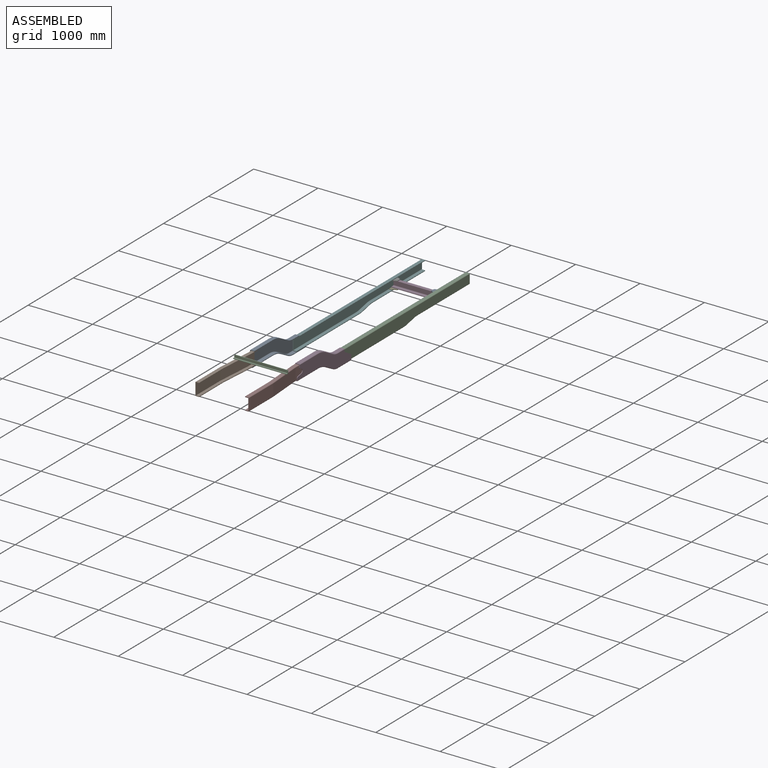
[diagram: assembled view]
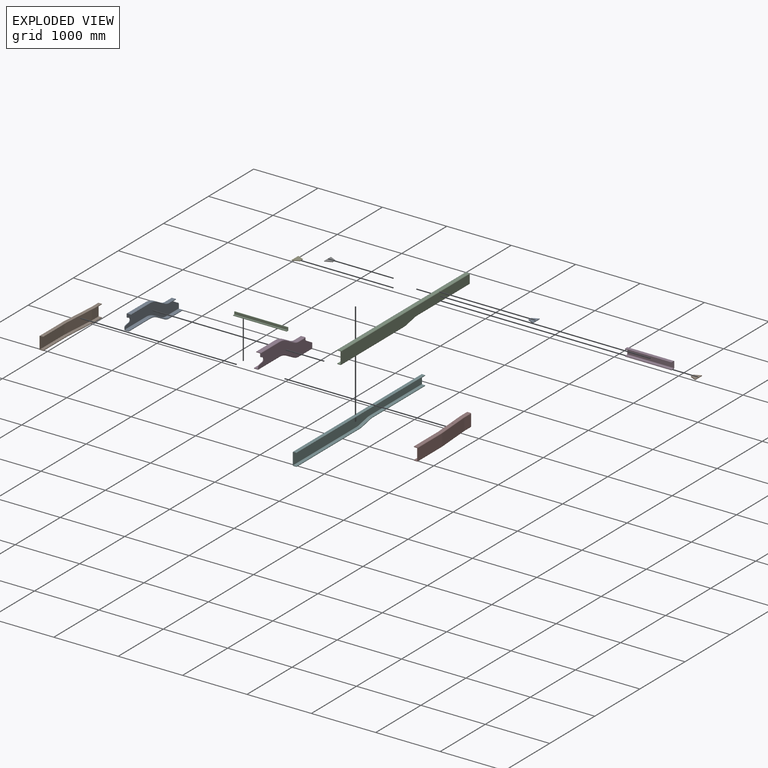
[diagram: exploded view]
GUIDED TOUR — MATED ASSEMBLY (Onshape document 778ca74ccf390a14aff63880, AutoMate assembly 778ca74ccf390a14aff63880_9d7f72cf0d742fc7e4a3b402_9199e8c43fa04ffe0b99f2cb_default)

This assembly has 12 components, labeled P0..P11 below (a component is one placed occurrence of a part; the same part can appear more than once), held together by 11 mates. A mate is a constraint between two components; its type names the relative motion it leaves free:
  FASTENED — locks the two components together rigidly (no relative motion).
Axis/direction vectors are unit vectors and 'through' points are millimeter coordinates, both in the assembly's world frame.

MATES
  1. FASTENED "Fastened 6": P6 <-> P5, direction (0.000, 0.000, -1.000) through (-351.00, 25.00, 10.00) mm
  2. FASTENED "Fastened 9": P8 <-> P5, direction (1.000, 0.000, 0.000) through (-376.00, -2139.00, -5.00) mm
  3. FASTENED "Fastened 12": P10 <-> P9, direction (0.000, 0.000, -1.000) through (-361.00, -3413.00, 180.00) mm
  4. FASTENED "Fastened 7": P0 <-> P2, direction (0.000, 0.000, 1.000) through (351.00, 25.00, 10.00) mm
  5. FASTENED "Fastened 5": P6 <-> P11, direction (-1.000, 0.000, 0.000) through (-361.00, 25.00, 0.00) mm
  6. FASTENED "Fastened 2": P0 <-> P11, direction (1.000, 0.000, 0.000) through (361.00, 25.00, 0.00) mm
  7. FASTENED "Fastened 8": P2 <-> P3, direction (1.000, 0.000, 0.000) through (376.00, -2139.00, -5.00) mm
  8. FASTENED "Fastened 11": P7 <-> P3, direction (1.000, 0.000, 0.000) through (376.00, -3052.00, 155.00) mm
  9. FASTENED "Fastened 3": P1 <-> P11, direction (1.000, 0.000, 0.000) through (361.00, 25.00, -112.00) mm
  10. FASTENED "Fastened 10": P8 <-> P9, direction (1.000, 0.000, 0.000) through (-376.00, -3052.00, 155.00) mm
  11. FASTENED "Fastened 4": P4 <-> P11, direction (-1.000, 0.000, 0.000) through (-361.00, 25.00, -112.00) mm

ASSEMBLY ORDER
  1. P2 — the base component [order verified]
  2. P3 [order verified]
  3. P8 [order verified]
  4. P5 [order verified]
  5. P11 [order verified]
  6. P4 [order verified]
  7. P6 [order verified]
  8. P0 [order verified]
  9. P1 [order verified]
  10. P9 [order verified]
  11. P7 [order verified]
  12. P10 [order verified]
Order-tag legend:
  [order verified] — this step's position reverses a verified removal order: the component was checked to insert without passing through the ones already placed.

Of the 12 components, 6 carry the full construction recipe — the FeatureScript program that regenerates the part's solid from scratch; the rest are supplied as boundary geometry only.
Each toured component is shown spotlighted twice — in the assembled view, then in the exploded view, where a leader line traces a displaced component back to its assembled socket (saturated green if recipe-attached, orange if geometry-only; every other component desaturated gray) — followed by its recipe or geometry summary and the mates that hold it.
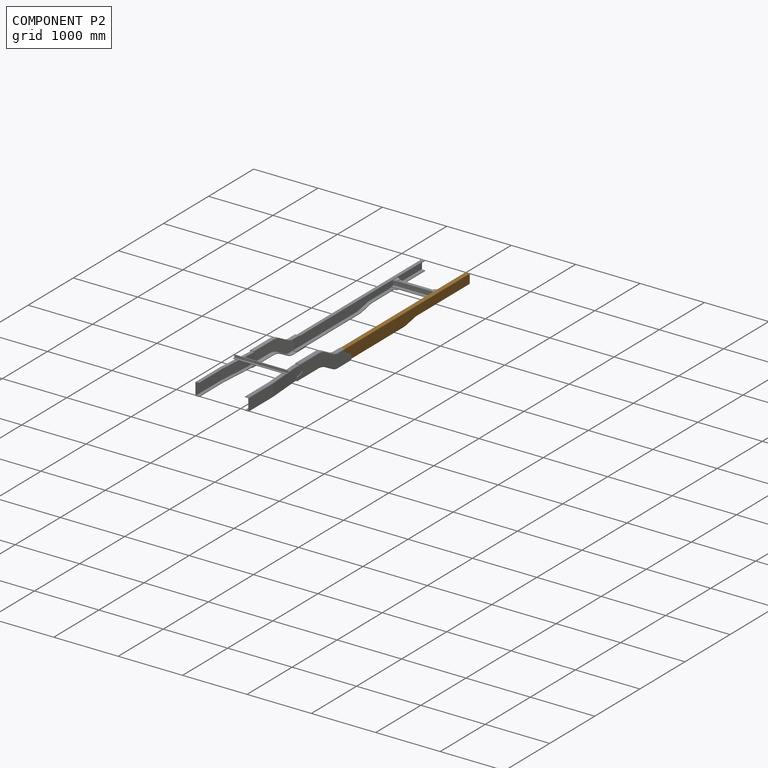
[diagram: component P2 — assembled]
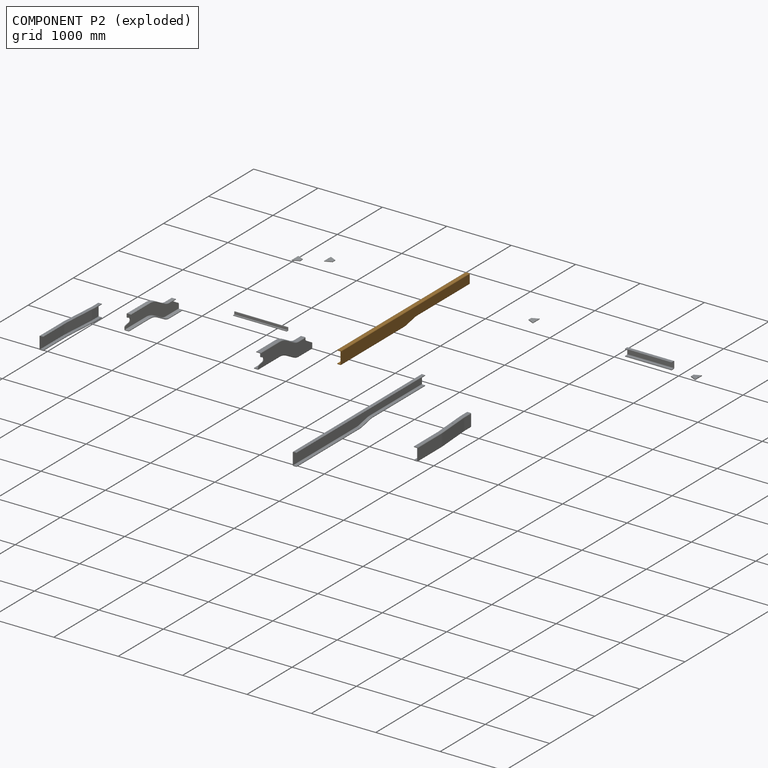
[diagram: component P2 — exploded]
COMPONENT P2 — geometry summary (no construction recipe available for this part):
  bounding box: 2852.0 x 201.6 x 60.0 mm
  B-rep topology: 1 solid, 34 faces, 164 edges
  volume: 7834535 mm^3 (23% of its bounding box)
Held by: FASTENED mate "Fastened 7" to P0; FASTENED mate "Fastened 8" to P3.
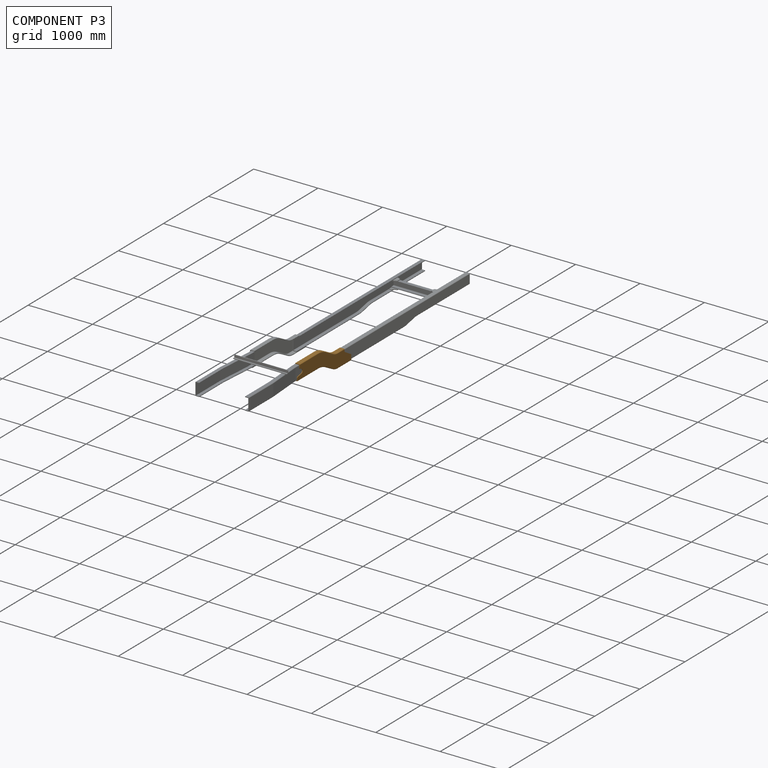
[diagram: component P3 — assembled]
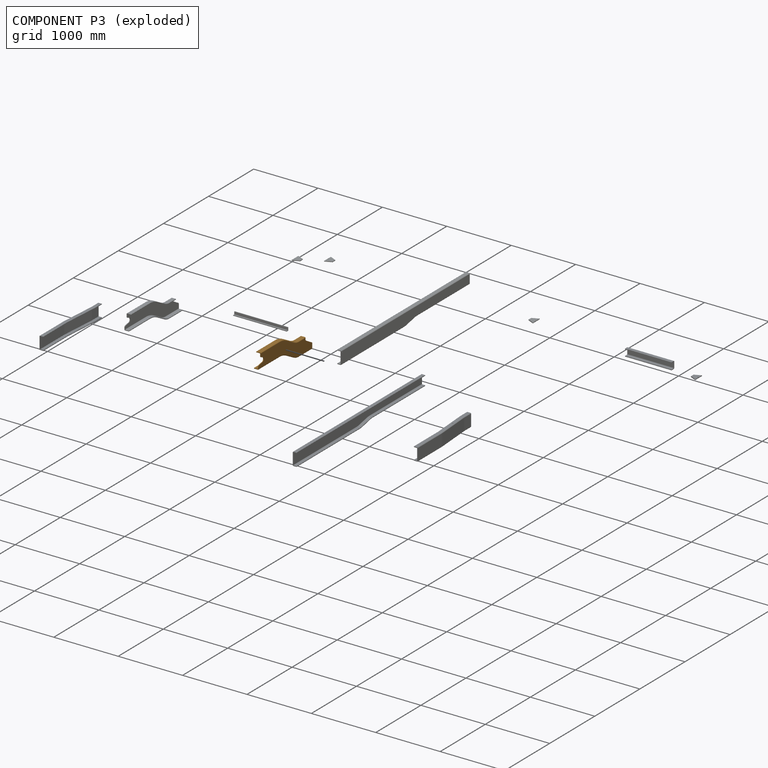
[diagram: component P3 — exploded]
COMPONENT P3 — geometry summary (no construction recipe available for this part):
  bounding box: 1193.0 x 425.3 x 70.0 mm
  B-rep topology: 1 solid, 60 faces, 304 edges
  volume: 3687859 mm^3 (10% of its bounding box)
Held by: FASTENED mate "Fastened 8" to P2; FASTENED mate "Fastened 11" to P7.
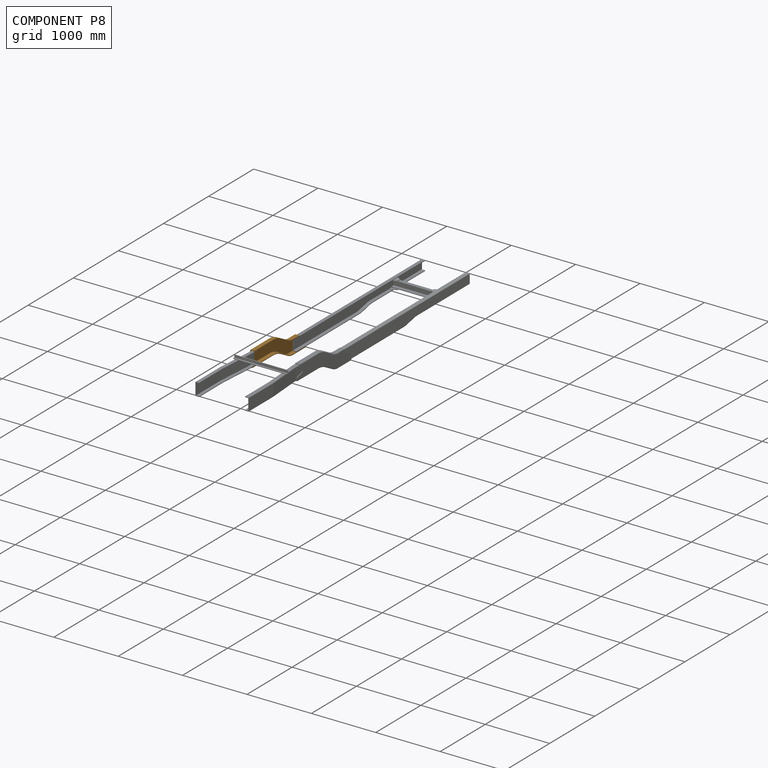
[diagram: component P8 — assembled]
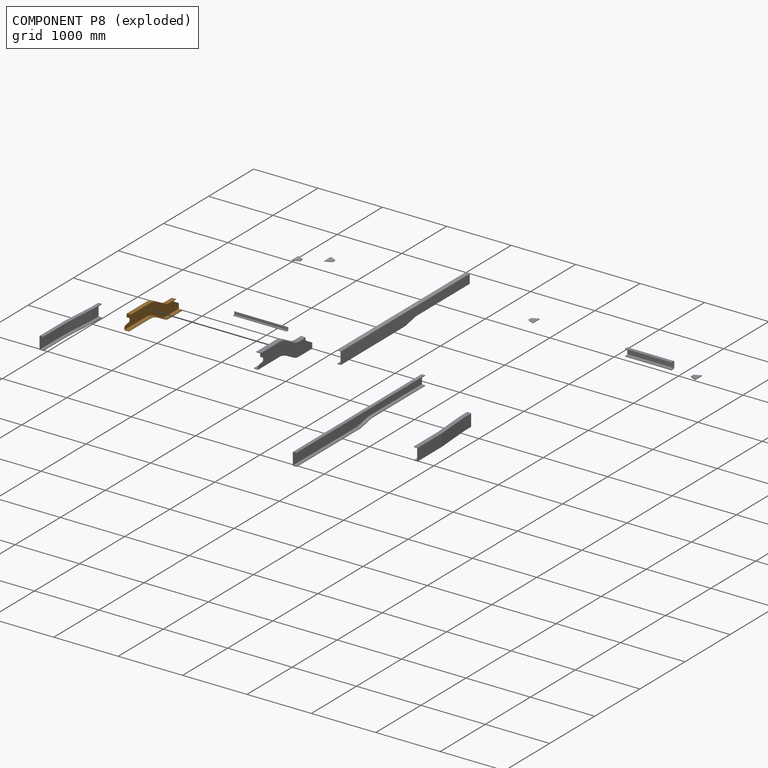
[diagram: component P8 — exploded]
COMPONENT P8 — geometry summary (no construction recipe available for this part):
  bounding box: 1193.0 x 425.3 x 70.0 mm
  B-rep topology: 1 solid, 60 faces, 304 edges
  volume: 3687859 mm^3 (10% of its bounding box)
Held by: FASTENED mate "Fastened 9" to P5; FASTENED mate "Fastened 10" to P9.
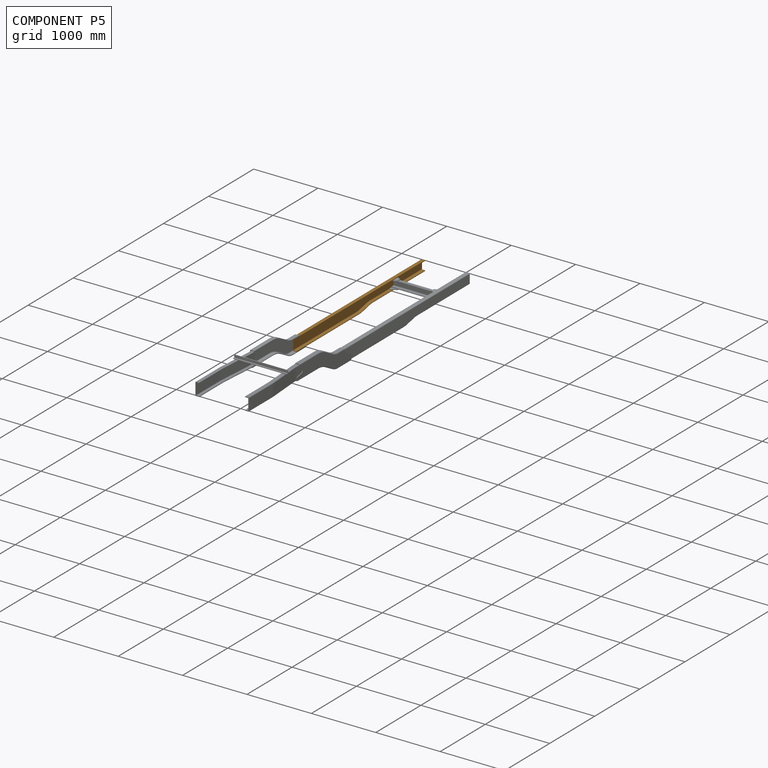
[diagram: component P5 — assembled]
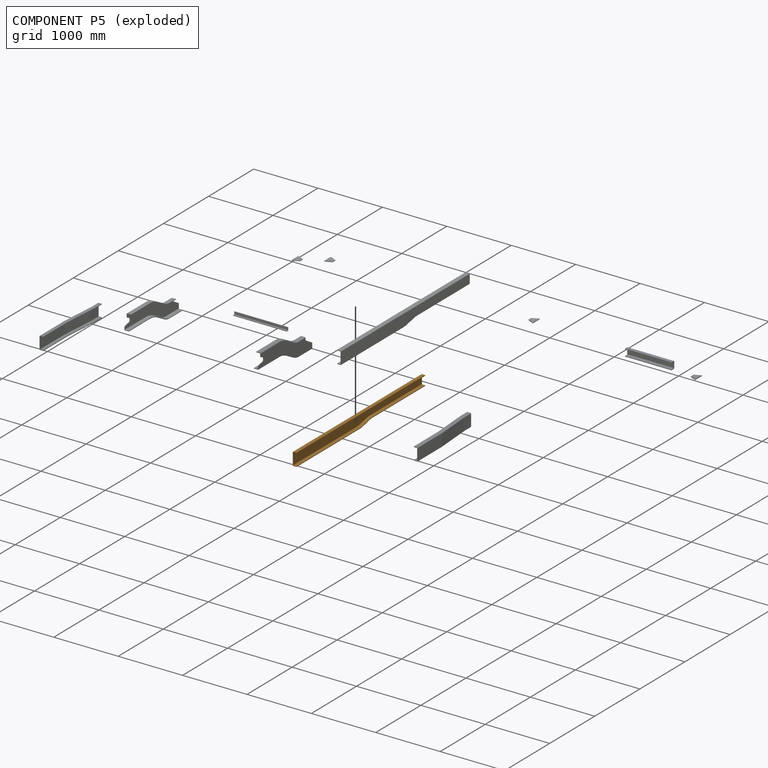
[diagram: component P5 — exploded]
COMPONENT P5 — geometry summary (no construction recipe available for this part):
  bounding box: 2852.0 x 201.6 x 60.0 mm
  B-rep topology: 1 solid, 34 faces, 164 edges
  volume: 7834535 mm^3 (23% of its bounding box)
Held by: FASTENED mate "Fastened 6" to P6; FASTENED mate "Fastened 9" to P8.
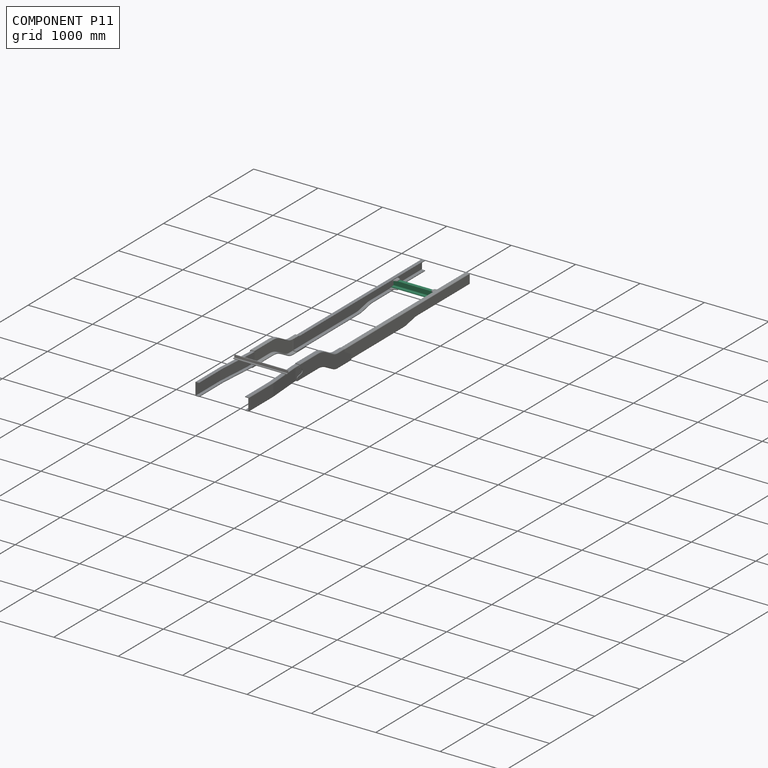
[diagram: component P11 — assembled]
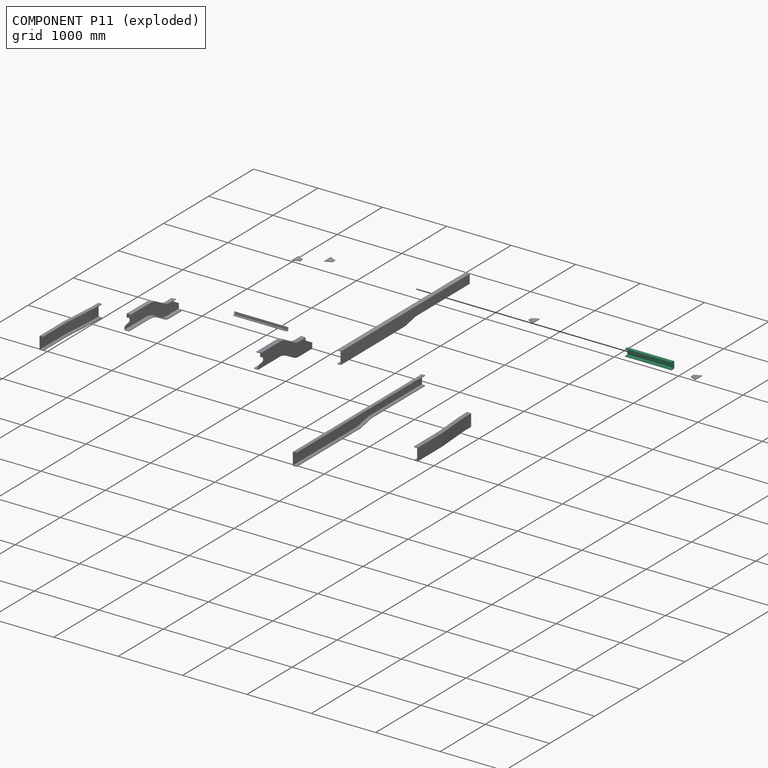
[diagram: component P11 — exploded]
COMPONENT P11 — recipe-attached (CADFS 00518499, mesh-verified: the recipe's output STEP matches this component's geometry to below the mesh-comparison resolution (tessellation chordal tolerance ~1.1 mm)).
Held by: FASTENED mate "Fastened 5" to P6; FASTENED mate "Fastened 2" to P0; FASTENED mate "Fastened 3" to P1; FASTENED mate "Fastened 4" to P4.
Construction recipe (FeatureScript — the CAD program that rebuilds this solid; sketch coordinates are in the units given by the * unit suffixes, e.g. mm):

FeatureScript 1511;
import(path : "onshape/std/geometry.fs", version : "1511.0");
import(path : "onshape/std/common.fs", version : "1511.0");
const mm = millimeter;
const VERTEX = EntityType.VERTEX;
const EDGE = EntityType.EDGE;
const FACE = EntityType.FACE;
const BODY = EntityType.BODY;
function v(x, y){return vector(x, y);}
function OD(order){return orderDisambiguation(order);}
function OSD(set){return originalSetDisambiguation(set);}
function TD(topology){return topologyDisambiguation(topology);}
function TDD(query){return trueDependencyDisambiguation(query);}
function sQuery(a, b, c) {return sketchEntityQuery(a, b, c);}

annotation { "Feature Type Name" : "Feature", "Feature Type Description" : "" }
export const myFeature = defineFeature(function(context is Context, id is Id, definition is map)
    precondition{}
    {
        {
            var Q0;
            Q0=qCreatedBy(makeId("Right.planeOp"),FACE);
            var sketch = newSketch(context, id + "F0", { "sketchPlane" : qUnion([Q0])});
            skLineSegment(sketch, "E0", {"start": v(0, 0) * mm, "end": v(50, 0) * mm});
            skLineSegment(sketch, "E1", {"start": v(60, -10) * mm, "end": v(60, -102) * mm});
            skLineSegment(sketch, "E2", {"start": v(50, -112) * mm, "end": v(0, -112) * mm});
            skLineSegment(sketch, "E3", {"start": v(0, -112) * mm, "end": v(0, -102) * mm});
            skLineSegment(sketch, "E4", {"start": v(0, -102) * mm, "end": v(45, -102) * mm});
            skLineSegment(sketch, "E5", {"start": v(50, -97) * mm, "end": v(50, -15) * mm});
            skLineSegment(sketch, "E6", {"start": v(45, -10) * mm, "end": v(0, -10) * mm});
            skLineSegment(sketch, "E7", {"start": v(0, -10) * mm, "end": v(0, 0) * mm});
            skPoint(sketch, "E8.visualSharp", {"position": v(60, 0) * mm});
            skArc(sketch, "E8.filletArc", {"start": v(60, -10) * mm, "mid": v(57.07, -2.93) * mm, "end": v(50, 0) * mm});
            skArc(sketch, "E9.filletArc", {"start": v(50, -15) * mm, "mid": v(48.54, -11.46) * mm, "end": v(45, -10) * mm});
            skPoint(sketch, "E10.visualSharp", {"position": v(50, -102) * mm});
            skArc(sketch, "E10.filletArc", {"start": v(45, -102) * mm, "mid": v(48.54, -100.54) * mm, "end": v(50, -97) * mm});
            skPoint(sketch, "E11.visualSharp", {"position": v(60, -112) * mm});
            skArc(sketch, "E11.filletArc", {"start": v(50, -112) * mm, "mid": v(57.07, -109.07) * mm, "end": v(60, -102) * mm});
            skSolve(sketch);
        }
        {
            var Q0;
            Q0 = qSketchRegion(id + "F0", true);
            extrude(context, id + "F1", {"entities" : qUnion([Q0]), "endBound" : BoundingType.SYMMETRIC, "depth" : 722 * mm, "offsetDistance" : 25 * mm});
        }
    });
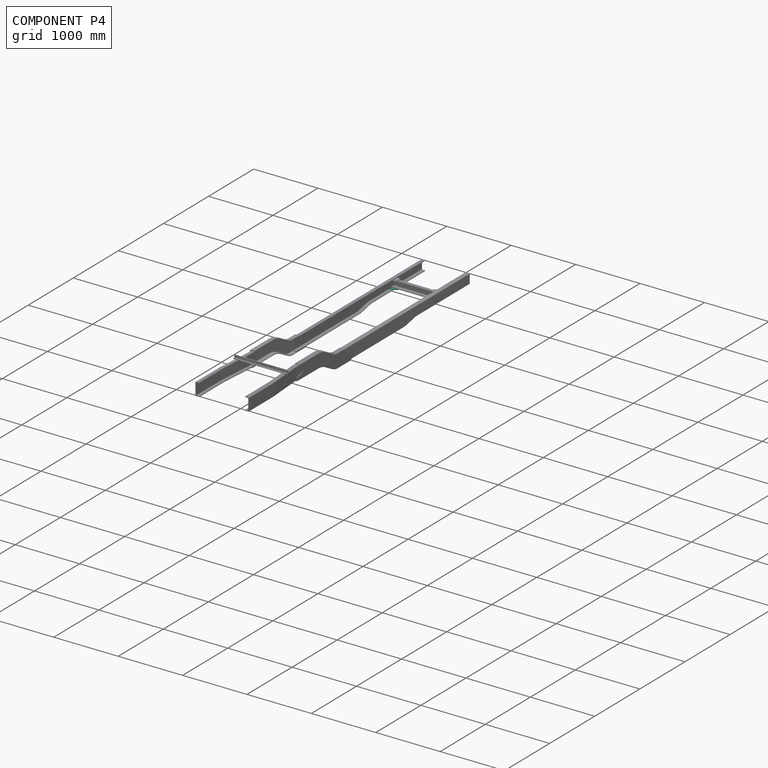
[diagram: component P4 — assembled]
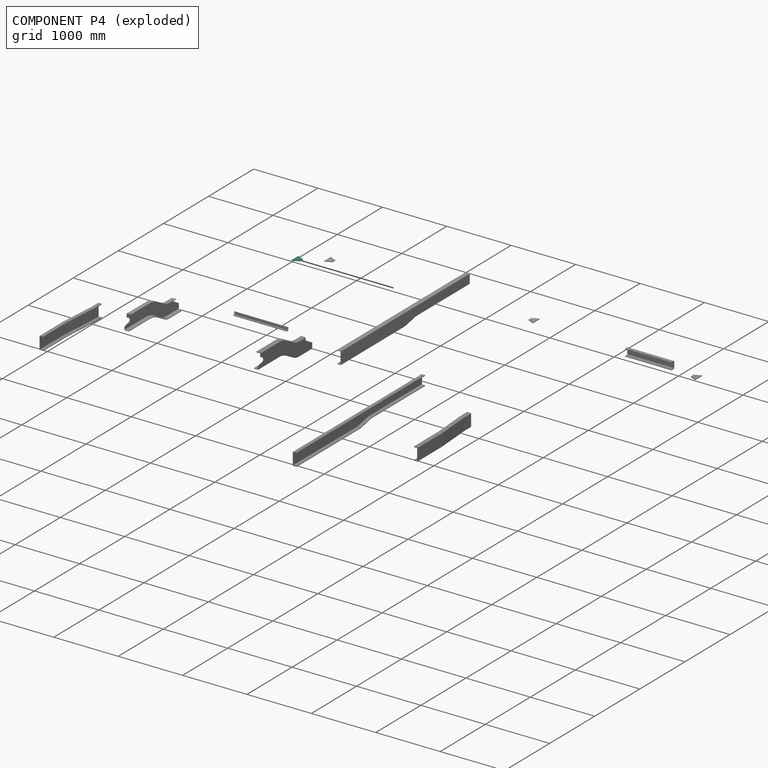
[diagram: component P4 — exploded]
COMPONENT P4 — same part as P0 (CADFS 00518498); its construction recipe is shown at P0.
Held by: FASTENED mate "Fastened 4" to P11.
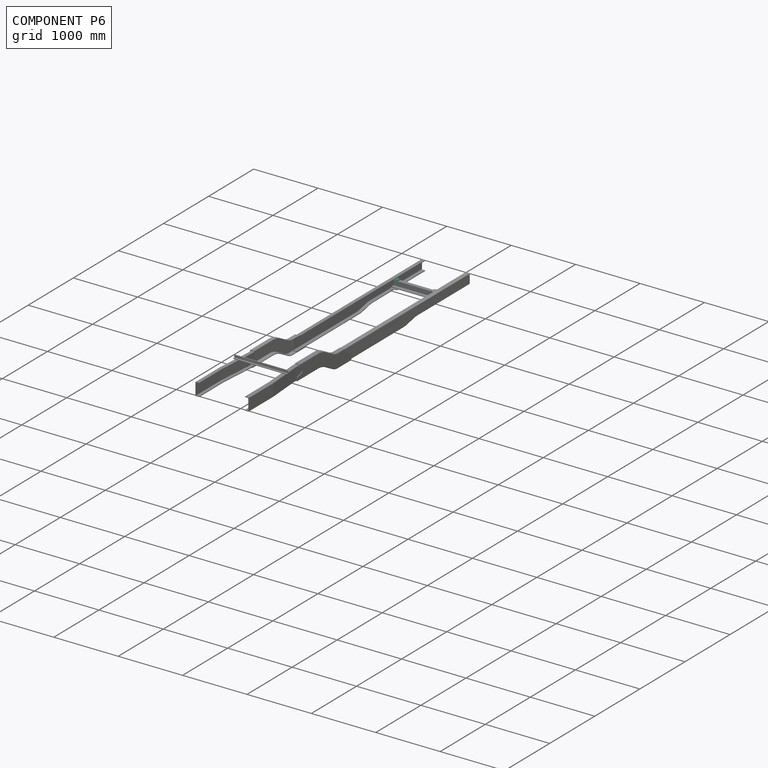
[diagram: component P6 — assembled]
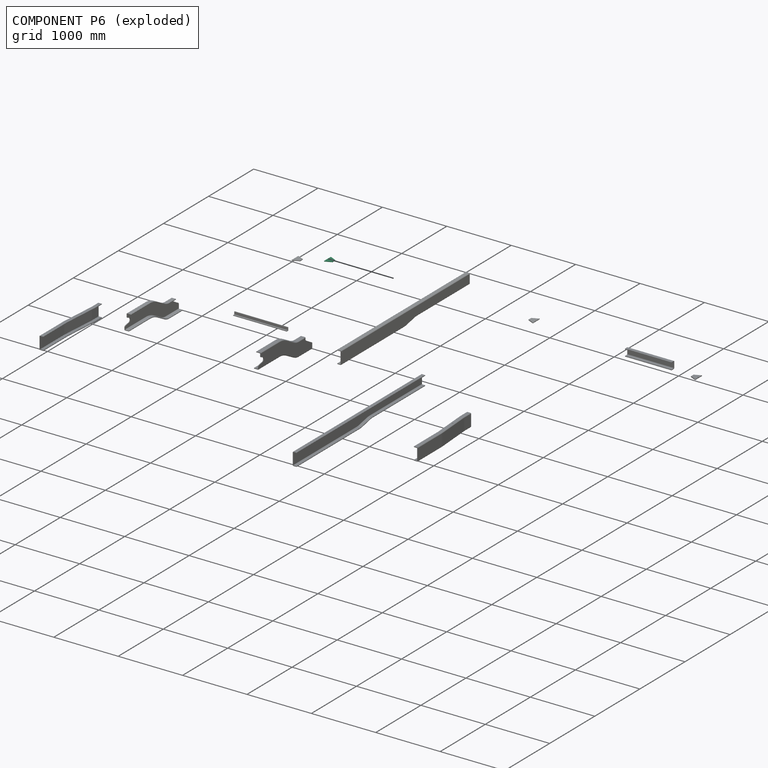
[diagram: component P6 — exploded]
COMPONENT P6 — same part as P0 (CADFS 00518498); its construction recipe is shown at P0.
Held by: FASTENED mate "Fastened 6" to P5; FASTENED mate "Fastened 5" to P11.
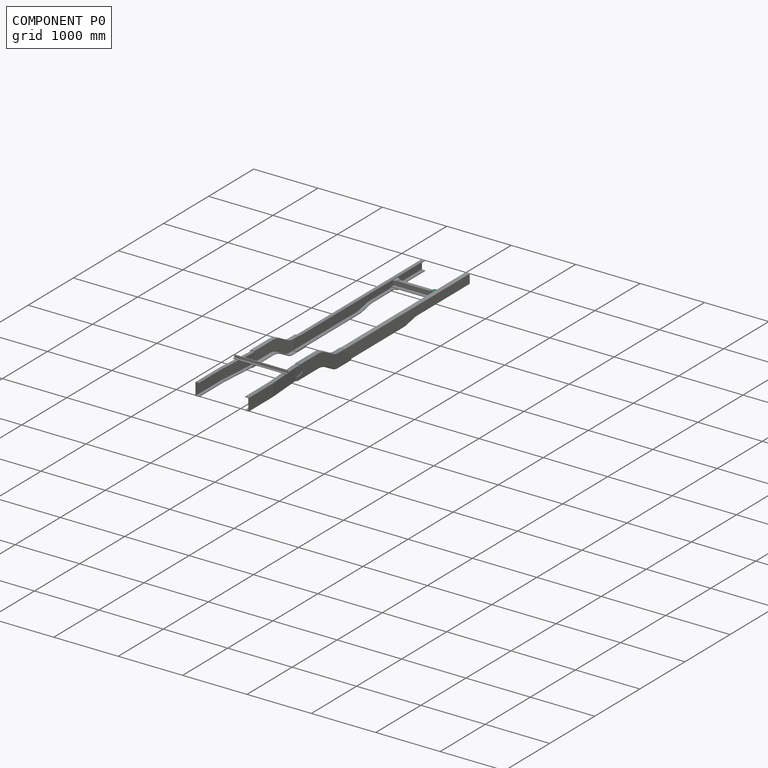
[diagram: component P0 — assembled]
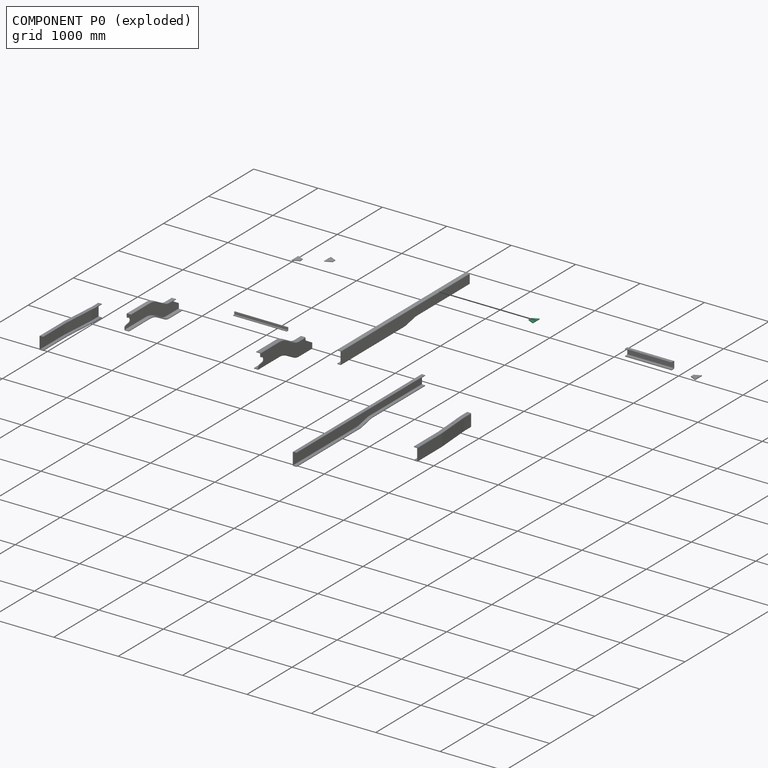
[diagram: component P0 — exploded]
COMPONENT P0 — recipe-attached (CADFS 00518498, mesh-verified: the recipe's output STEP matches this component's geometry to below the mesh-comparison resolution (tessellation chordal tolerance ~0.271 mm)).
Held by: FASTENED mate "Fastened 7" to P2; FASTENED mate "Fastened 2" to P11.
Construction recipe (FeatureScript — the CAD program that rebuilds this solid; sketch coordinates are in the units given by the * unit suffixes, e.g. mm):

FeatureScript 1511;
import(path : "onshape/std/geometry.fs", version : "1511.0");
import(path : "onshape/std/common.fs", version : "1511.0");
const mm = millimeter;
const VERTEX = EntityType.VERTEX;
const EDGE = EntityType.EDGE;
const FACE = EntityType.FACE;
const BODY = EntityType.BODY;
function v(x, y){return vector(x, y);}
function OD(order){return orderDisambiguation(order);}
function OSD(set){return originalSetDisambiguation(set);}
function TD(topology){return topologyDisambiguation(topology);}
function TDD(query){return trueDependencyDisambiguation(query);}
function sQuery(a, b, c) {return sketchEntityQuery(a, b, c);}

annotation { "Feature Type Name" : "Feature", "Feature Type Description" : "" }
export const myFeature = defineFeature(function(context is Context, id is Id, definition is map)
    precondition{}
    {
        {
            var Q0;
            Q0=qCreatedBy(makeId("Top.planeOp"),FACE);
            var sketch = newSketch(context, id + "F0", { "sketchPlane" : qUnion([Q0])});
            skLineSegment(sketch, "E0", {"start": v(0, -30) * mm, "end": v(0, 30) * mm});
            skLineSegment(sketch, "E1", {"start": v(0, 30) * mm, "end": v(100, 75) * mm});
            skLineSegment(sketch, "E2", {"start": v(100, 75) * mm, "end": v(100, -75) * mm});
            skLineSegment(sketch, "E3", {"start": v(100, -75) * mm, "end": v(0, -30) * mm});
            skSolve(sketch);
        }
        {
            var Q0;
            Q0=makeQuery(id+"F0.imprint","IMPRINT",FACE,{"disambiguationData":[TD([[makeQuery(id+"F0.imprint","IMPRINT",EDGE,{"derivedFrom":sQuery(id+"F0.wireOp",EDGE,"E0")}),-1.0]])]});
            extrude(context, id + "F1", {"entities" : qUnion([Q0]), "depth" : 10 * mm, "offsetDistance" : 25 * mm});
        }
        {
            var Q0;
            Q0=makeQuery(id+"F1.opExtrude","CAP_FACE",FACE,{"disambiguationData":[OSD([sQuery(id+"F0.wireOp",EDGE,"E0"),sQuery(id+"F0.wireOp",EDGE,"E1"),sQuery(id+"F0.wireOp",EDGE,"E2"),sQuery(id+"F0.wireOp",EDGE,"E3")])],"isStart":false});
            var sketch = newSketch(context, id + "F2", { "sketchPlane" : qUnion([Q0])});
            skCircle(sketch, "E4", {"center": v(90, 0) * mm, "radius": 5 * mm});
            skSolve(sketch);
        }
        {
            var Q0;
            Q0 = qSketchRegion(id + "F2", true);
            extrude(context, id + "F3", {"entities" : qUnion([Q0]), "operationType" : NewBodyOperationType.ADD, "depth" : 5 * mm, "offsetDistance" : 25 * mm});
        }
    });
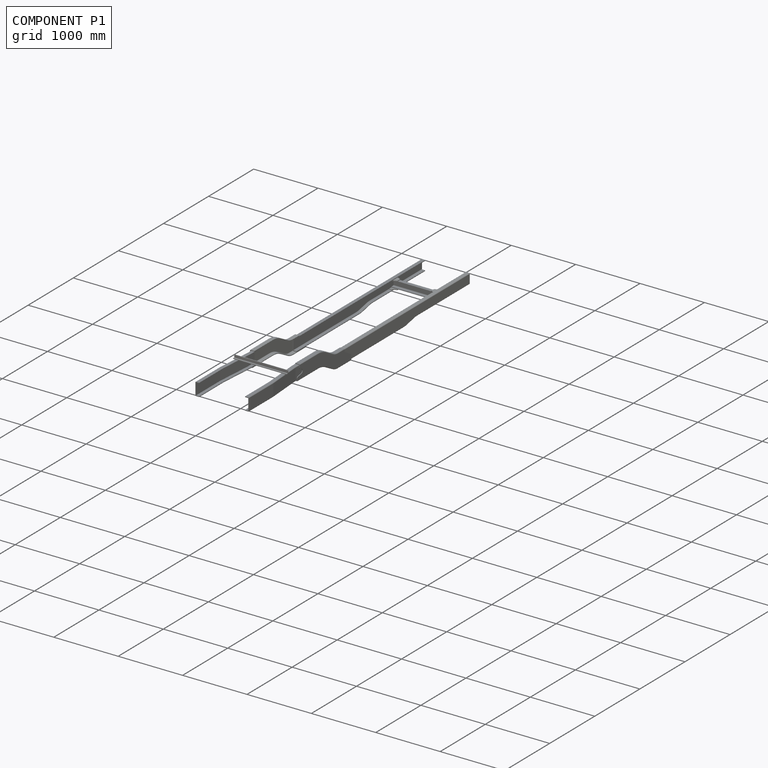
[diagram: component P1 — assembled]
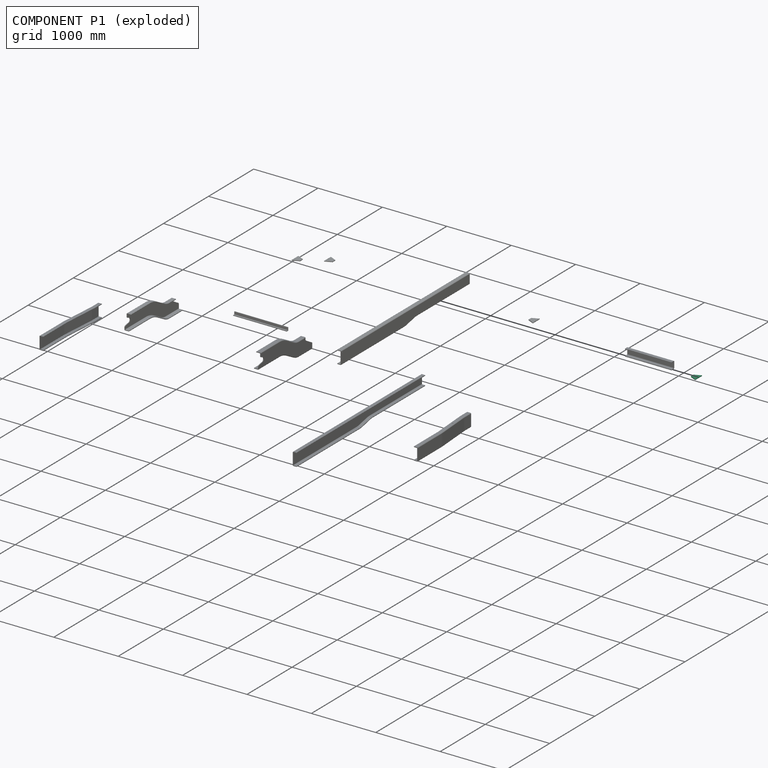
[diagram: component P1 — exploded]
COMPONENT P1 — same part as P0 (CADFS 00518498); its construction recipe is shown at P0.
Held by: FASTENED mate "Fastened 3" to P11.
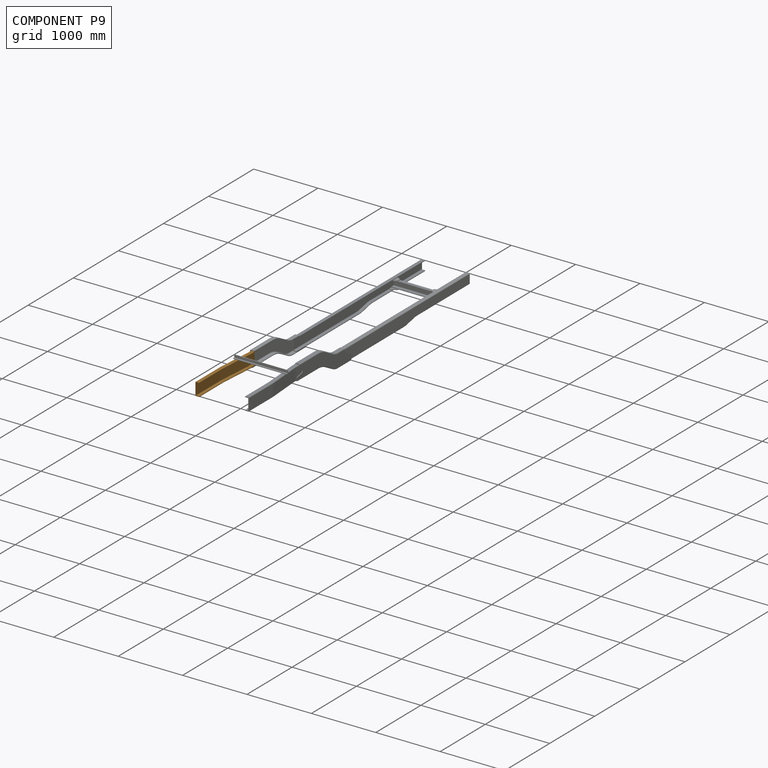
[diagram: component P9 — assembled]
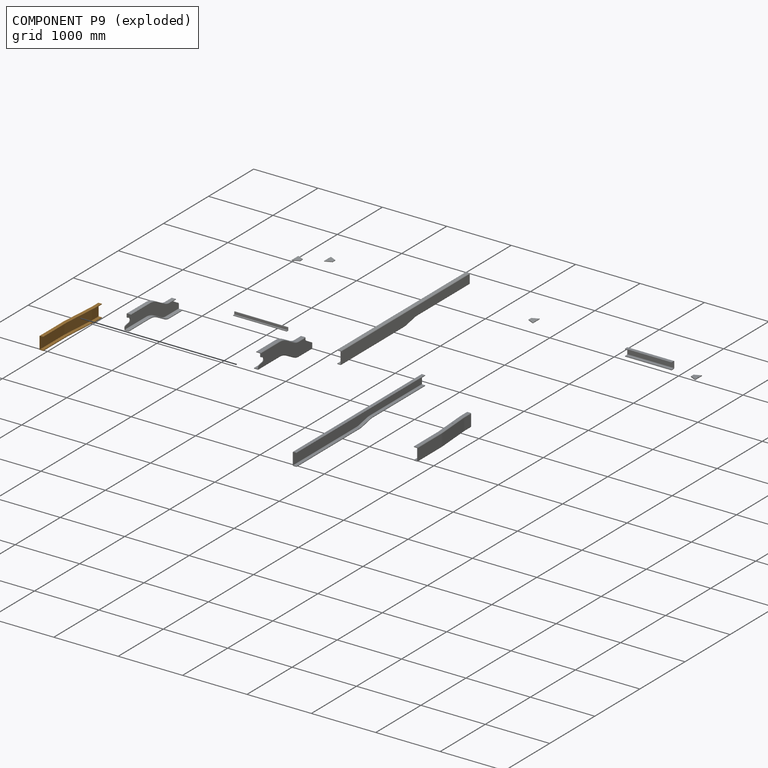
[diagram: component P9 — exploded]
COMPONENT P9 — geometry summary (no construction recipe available for this part):
  bounding box: 1240.0 x 205.0 x 100.3 mm
  B-rep topology: 1 solid, 40 faces, 200 edges
  volume: 3669286 mm^3 (14% of its bounding box)
  symmetry: mirror-symmetric across its z mid-plane
Held by: FASTENED mate "Fastened 12" to P10; FASTENED mate "Fastened 10" to P8.
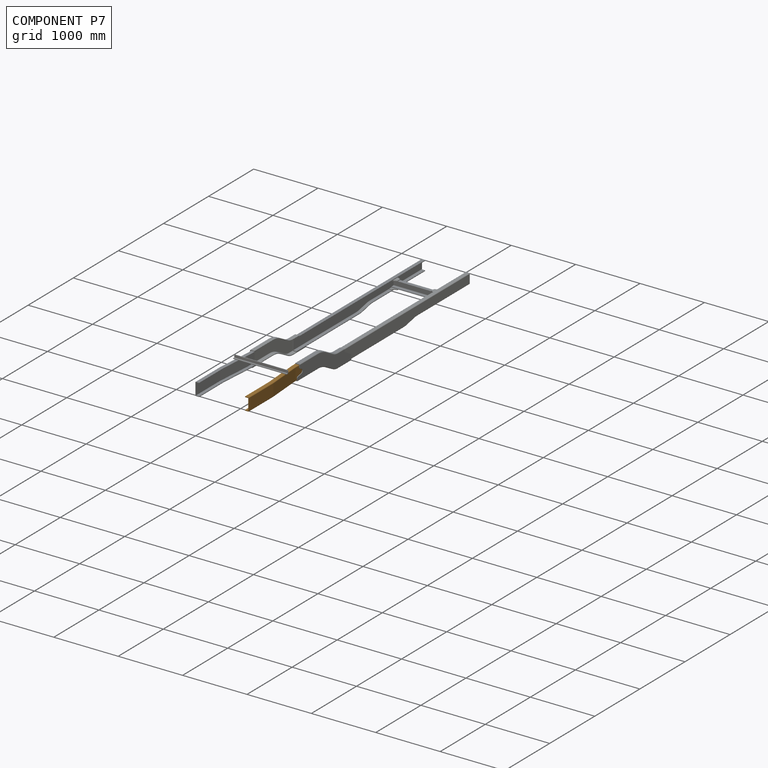
[diagram: component P7 — assembled]
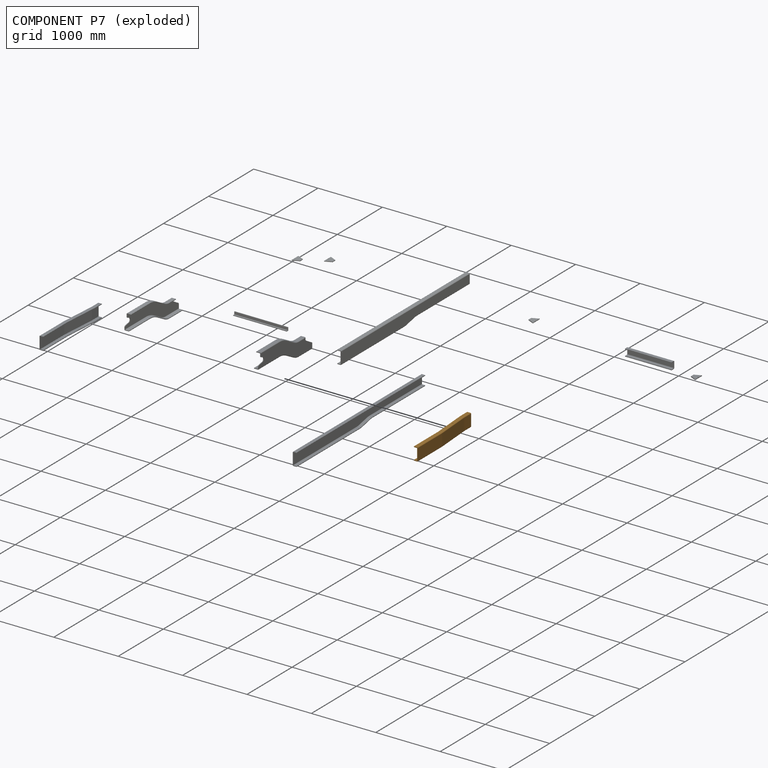
[diagram: component P7 — exploded]
COMPONENT P7 — geometry summary (no construction recipe available for this part):
  bounding box: 1240.0 x 205.0 x 100.3 mm
  B-rep topology: 1 solid, 40 faces, 200 edges
  volume: 3669286 mm^3 (14% of its bounding box)
  symmetry: mirror-symmetric across its z mid-plane
Held by: FASTENED mate "Fastened 11" to P3.
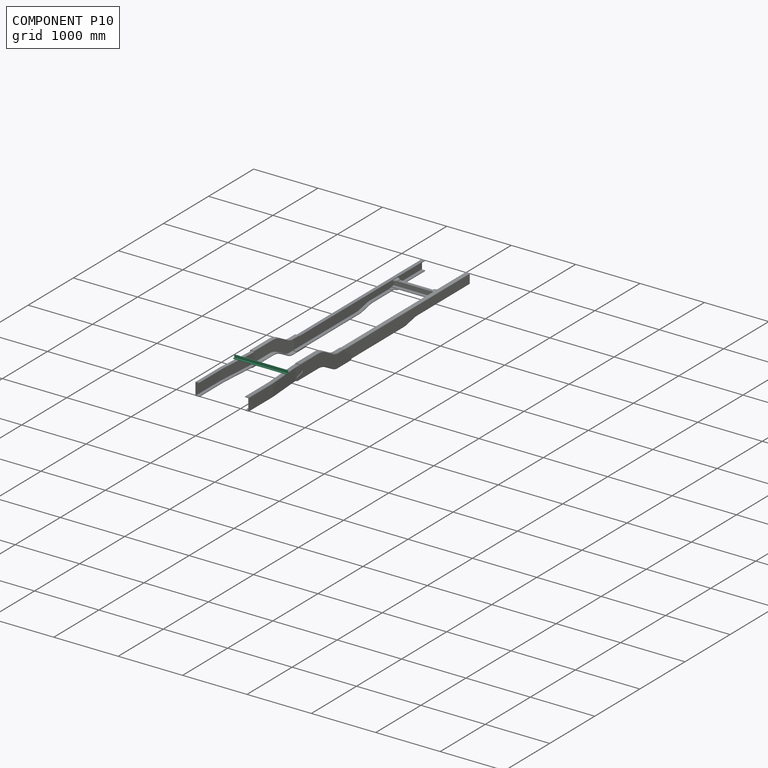
[diagram: component P10 — assembled]
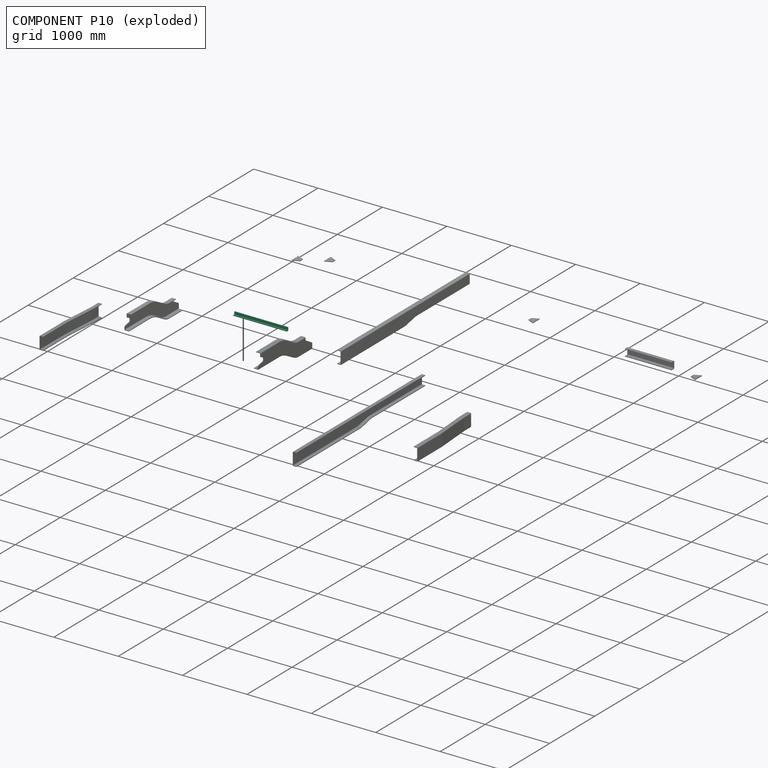
[diagram: component P10 — exploded]
COMPONENT P10 — recipe-attached (CADFS 00518497, mesh-verified: the recipe's output STEP matches this component's geometry to below the mesh-comparison resolution (tessellation chordal tolerance ~1.25 mm)).
Held by: FASTENED mate "Fastened 12" to P9.
Construction recipe (FeatureScript — the CAD program that rebuilds this solid; sketch coordinates are in the units given by the * unit suffixes, e.g. mm):

FeatureScript 1511;
import(path : "onshape/std/geometry.fs", version : "1511.0");
import(path : "onshape/std/common.fs", version : "1511.0");
const mm = millimeter;
const VERTEX = EntityType.VERTEX;
const EDGE = EntityType.EDGE;
const FACE = EntityType.FACE;
const BODY = EntityType.BODY;
function v(x, y){return vector(x, y);}
function OD(order){return orderDisambiguation(order);}
function OSD(set){return originalSetDisambiguation(set);}
function TD(topology){return topologyDisambiguation(topology);}
function TDD(query){return trueDependencyDisambiguation(query);}
function sQuery(a, b, c) {return sketchEntityQuery(a, b, c);}

annotation { "Feature Type Name" : "Feature", "Feature Type Description" : "" }
export const myFeature = defineFeature(function(context is Context, id is Id, definition is map)
    precondition{}
    {
        {
            var Q0;
            Q0=qCreatedBy(makeId("Right.planeOp"),FACE);
            var sketch = newSketch(context, id + "F0", { "sketchPlane" : qUnion([Q0])});
            skLineSegment(sketch, "E0", {"start": v(0, 0) * mm, "end": v(0, 50) * mm});
            skLineSegment(sketch, "E1", {"start": v(0, 50) * mm, "end": v(-10, 50) * mm});
            skLineSegment(sketch, "E2", {"start": v(-10, 50) * mm, "end": v(-10, 10) * mm});
            skLineSegment(sketch, "E3", {"start": v(-10, 10) * mm, "end": v(-35, 10) * mm});
            skLineSegment(sketch, "E4", {"start": v(-35, 10) * mm, "end": v(-35, 0) * mm});
            skLineSegment(sketch, "E5", {"start": v(-35, 0) * mm, "end": v(0, 0) * mm});
            skSolve(sketch);
        }
        {
            var Q0;
            Q0=makeQuery(id+"F0.imprint","IMPRINT",FACE,{"disambiguationData":[TD([[makeQuery(id+"F0.imprint","IMPRINT",EDGE,{"derivedFrom":sQuery(id+"F0.wireOp",EDGE,"E0")}),1.0]])]});
            extrude(context, id + "F1", {"entities" : qUnion([Q0]), "endBound" : BoundingType.SYMMETRIC, "depth" : 832 * mm, "offsetDistance" : 25 * mm});
        }
        {
            var Q0;
            Q0=makeQuery(id+"F1.opExtrude","SWEPT_FACE",FACE,{"disambiguationData":[OSD([sQuery(id+"F0.wireOp",EDGE,"E5")])]});
            var sketch = newSketch(context, id + "F2", { "sketchPlane" : qUnion([Q0])});
            skCircle(sketch, "E6", {"center": v(-361, 20) * mm, "radius": 5 * mm});
            skSolve(sketch);
        }
        {
            var Q0;
            Q0 = qSketchRegion(id + "F2", true);
            extrude(context, id + "F3", {"entities" : qUnion([Q0]), "operationType" : NewBodyOperationType.REMOVE, "oppositeDirection" : true, "depth" : 5 * mm, "offsetDistance" : 25 * mm});
        }
    });
PROVENANCE & LICENSES
Assembly (occurrences, transforms, mates, per-part STEP geometry): AutoMate dataset, Zenodo record 7776208, CC0.
Construction recipes: CADFS (HuggingFace VladPyatov/CADFS, CC-BY-4.0, layered over the ABC dataset), FeatureScript reconstruction programs keyed by ABC model id.
Join: ABC meta listings map ABC model id -> Onshape documentId; within a shared document, parts are matched by geometric signature (bounding-box dims + volume at 0.1% relative tolerance, exact B-rep face/solid counts).
Verification: 6 of this assembly's 12 components carry a recipe attachment, and every attachment is mesh-verified: the CADFS STEP and the AutoMate member STEP were compared as meshes in their shared local frame (symmetric sampled-point-to-mesh distance); worst across the 6 attachments: below the mesh-comparison resolution (tessellation chordal tolerance ~1.25 mm) on a 834 mm part.
Renders: orthographic iso camera (az 35 / el 25); the floor grid conveys scale (grid pitch printed in each image; no ruler). In the exploded view each component is displaced by its stored offset vector: the offsets alone carry the explosion direction (mate normal/axis signs are not orientation cues and do not encode it), and separation distances are assigned per mate-chain, not proportionally to assembly-order depth.
